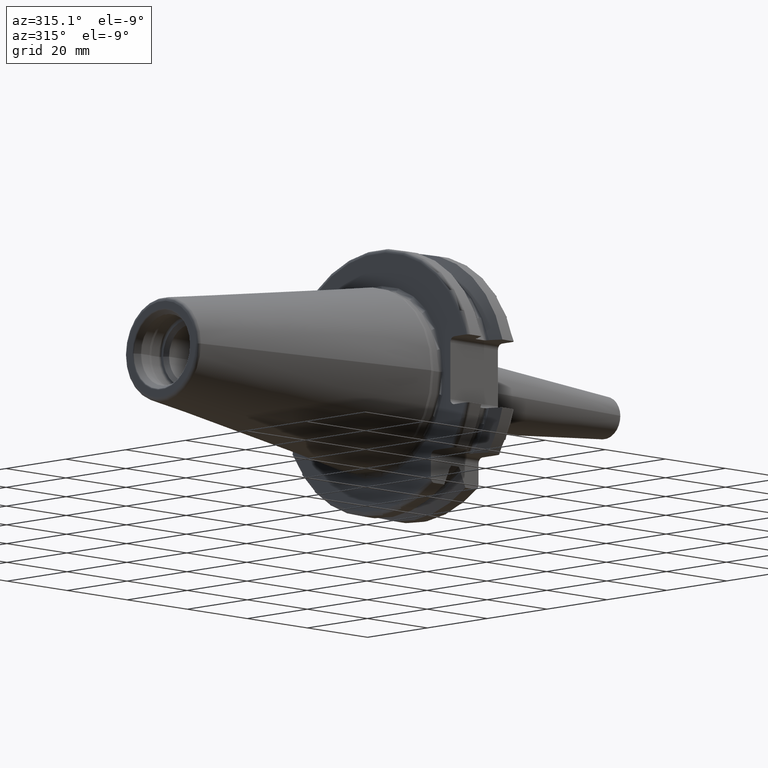
[diagram: clean part render]
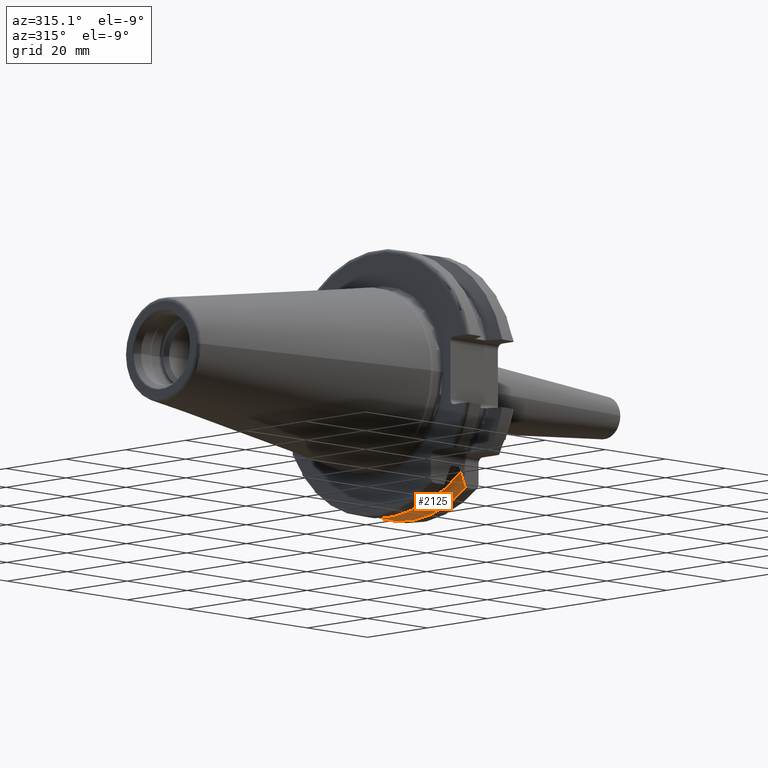
[diagram: same view with one face highlighted and labeled with its STEP entity id]
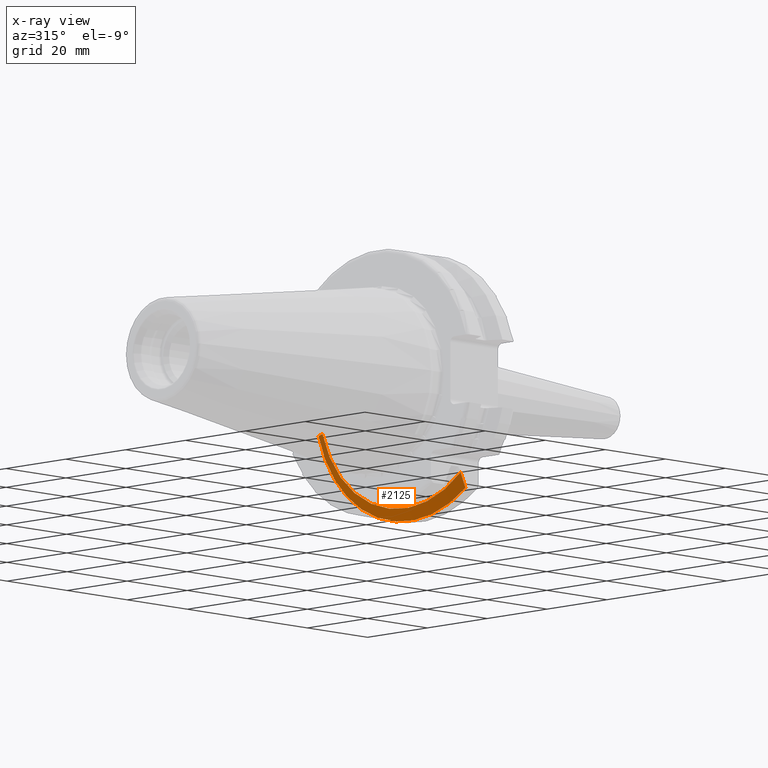
[diagram: x-ray of the same camera — body ghosted, the highlighted face saturated]
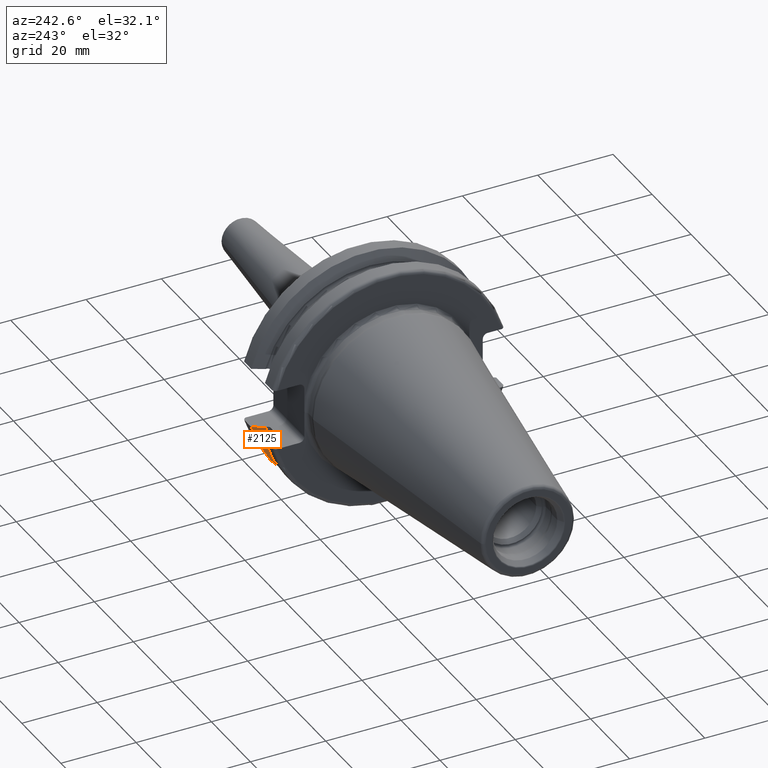
[diagram: same view with one face highlighted and labeled with its STEP entity id]
A machine part, auxiliary view. The second image highlights one B-rep face of the part: STEP entity #2125.
The next image is the same camera in x-ray: the body ghosted, the highlighted face saturated — about 8% of this face is hidden behind the body in this view.
A second angle (auxiliary view) of the same face is appended — the face is thin or edge-on in the first view.
In plain terms, the highlighted conical surface has half-angle 60 deg.
Its self-contained STEP definition (entity closure, byte-faithful):
#385=CARTESIAN_POINT('',(1.470405352042E1,0.E0,0.E0));
#386=DIRECTION('',(1.E0,0.E0,0.E0));
#387=DIRECTION('',(0.E0,-5.777253049980E-1,-8.162312613254E-1));
#388=AXIS2_PLACEMENT_3D('',#385,#386,#387);
#488=CARTESIAN_POINT('',(1.30875E1,2.780681820245E1,-8.1E0));
#489=CARTESIAN_POINT('',(1.326086175289E1,2.811956968242E1,-8.1E0));
#490=CARTESIAN_POINT('',(1.361176448515E1,2.875178670793E1,-8.1E0));
#491=CARTESIAN_POINT('',(1.415055493375E1,2.972014324708E1,-8.1E0));
#492=CARTESIAN_POINT('',(1.451816260441E1,3.037933474515E1,-8.1E0));
#493=CARTESIAN_POINT('',(1.470405352042E1,3.071231684927E1,-8.1E0));
#495=CARTESIAN_POINT('',(1.30875E1,0.E0,0.E0));
#496=DIRECTION('',(-1.E0,0.E0,0.E0));
#497=DIRECTION('',(0.E0,9.600957415706E-1,-2.796715341576E-1));
#498=AXIS2_PLACEMENT_3D('',#495,#496,#497);
#500=CARTESIAN_POINT('',(1.30875E1,-1.835E1,-2.240773613162E1));
#501=CARTESIAN_POINT('',(1.325213098463E1,-1.835E1,-2.277629848758E1));
#502=CARTESIAN_POINT('',(1.359130882027E1,-1.835E1,-2.352831190146E1));
#503=CARTESIAN_POINT('',(1.412957926498E1,-1.835E1,-2.469989032362E1));
#504=CARTESIAN_POINT('',(1.450914442104E1,-1.835E1,-2.551194640168E1));
#505=CARTESIAN_POINT('',(1.470405352042E1,-1.835E1,-2.592554543785E1));
#1352=CARTESIAN_POINT('',(1.30875E1,2.780681820245E1,-8.1E0));
#1354=VERTEX_POINT('',#1352);
#1366=CARTESIAN_POINT('',(1.30875E1,-1.835E1,-2.240773613162E1));
#1368=VERTEX_POINT('',#1366);
#1380=VERTEX_POINT('',#493);
#1474=VERTEX_POINT('',#505);
#2113=CARTESIAN_POINT('',(1.389577676021E1,0.E0,0.E0));
#2114=DIRECTION('',(1.E0,0.E0,0.E0));
#2115=DIRECTION('',(0.E0,-1.E0,0.E0));
#2116=AXIS2_PLACEMENT_3D('',#2113,#2114,#2115);
#2117=CONICAL_SURFACE('',#2116,3.036252358474E1,6.E1);
#2118=ORIENTED_EDGE('',*,*,#1711,.F.);
#2120=ORIENTED_EDGE('',*,*,#2119,.T.);
#2121=ORIENTED_EDGE('',*,*,#2091,.T.);
#2122=ORIENTED_EDGE('',*,*,#2020,.T.);
#2123=EDGE_LOOP('',(#2118,#2120,#2121,#2122));
#2124=FACE_OUTER_BOUND('',#2123,.F.);
#2125=ADVANCED_FACE('',(#2124),#2117,.T.);
#389=CIRCLE('',#388,3.17625E1);
#494=B_SPLINE_CURVE_WITH_KNOTS('',3,(#488,#489,#490,#491,#492,#493),
.UNSPECIFIED.,.F.,.F.,(4,1,1,4),(0.E0,3.333333333333E-1,6.666666666667E-1,1.E0),
.UNSPECIFIED.);
#499=CIRCLE('',#498,2.896254716948E1);
#506=B_SPLINE_CURVE_WITH_KNOTS('',3,(#500,#501,#502,#503,#504,#505),
.UNSPECIFIED.,.F.,.F.,(4,1,1,4),(0.E0,3.333333333333E-1,6.666666666667E-1,1.E0),
.UNSPECIFIED.);
#1711=EDGE_CURVE('',#1354,#1380,#494,.T.);
#2020=EDGE_CURVE('',#1474,#1380,#389,.T.);
#2091=EDGE_CURVE('',#1368,#1474,#506,.T.);
#2119=EDGE_CURVE('',#1354,#1368,#499,.T.);